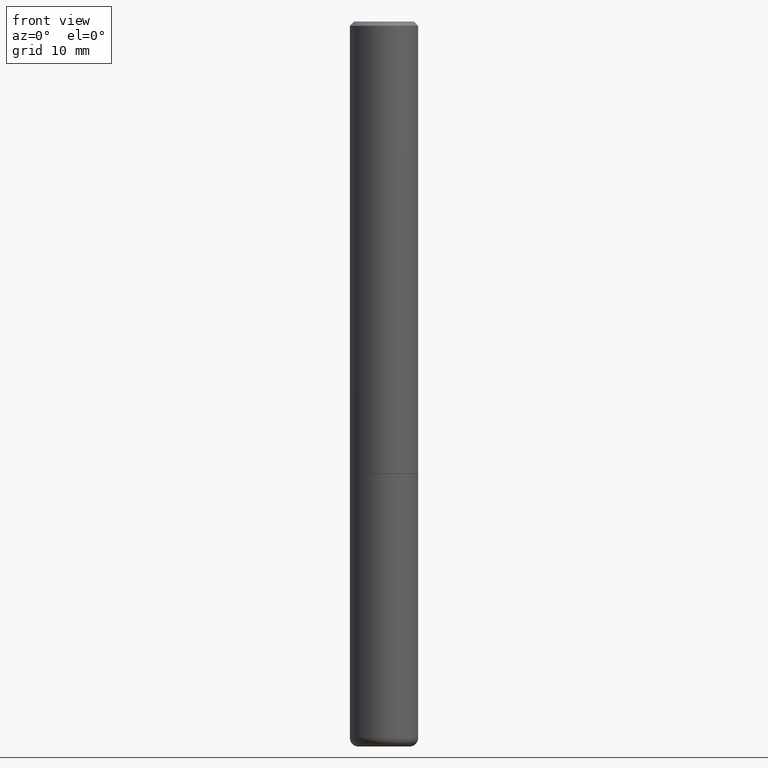
[diagram: clean part render]
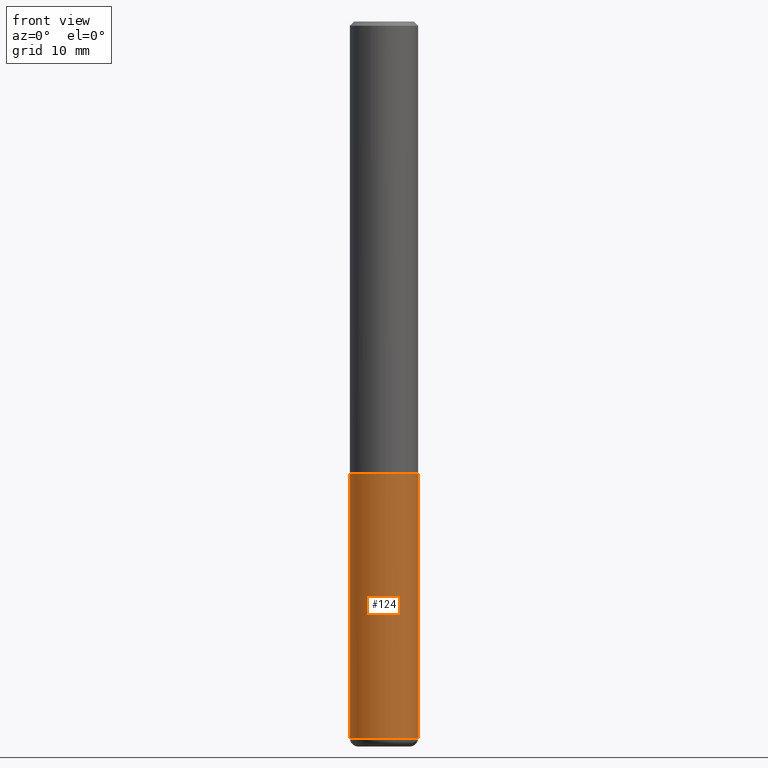
[diagram: same view with one face highlighted and labeled with its STEP entity id]
A machine part, front view. The second image highlights one B-rep face of the part: STEP entity #124.
In plain terms, the highlighted cylindrical surface (edge-blend (fillet) strip) has radius 4.0005 mm, axis along (-0, 0, 1).
Its self-contained STEP definition (entity closure, byte-faithful):
#27 = DIRECTION ( 'NONE',  ( -2.445468806185136597E-29, 3.491481338843145583E-15, 1.000000000000000000 ) ) ;
#32 = CARTESIAN_POINT ( 'NONE',  ( 0.000000000000000000, 0.000000000000000000, 0.000000000000000000 ) ) ;
#45 = LINE ( 'NONE', #270, #63 ) ;
#53 = VERTEX_POINT ( 'NONE', #337 ) ;
#62 = CIRCLE ( 'NONE', #158, 0.1575000000000000011 ) ;
#63 = VECTOR ( 'NONE', #329, 39.37007874015748143 ) ;
#79 = ORIENTED_EDGE ( 'NONE', *, *, #367, .T. ) ;
#81 = CIRCLE ( 'NONE', #316, 0.1575000000000000011 ) ;
#100 = DIRECTION ( 'NONE',  ( 1.000000000000000000, -6.982962677686268288E-15, 0.000000000000000000 ) ) ;
#110 = EDGE_CURVE ( 'NONE', #301, #366, #62, .T. ) ;
#112 = CARTESIAN_POINT ( 'NONE',  ( -0.1574999999999998901, -1.042757312686600805E-14, -3.307099999999999707 ) ) ;
#124 = ADVANCED_FACE ( 'NONE', ( #194 ), #252, .T. ) ;
#157 = DIRECTION ( 'NONE',  ( -2.445468806185136597E-29, 3.491481338843145583E-15, 1.000000000000000000 ) ) ;
#158 = AXIS2_PLACEMENT_3D ( 'NONE', #377, #157, #248 ) ;
#182 = VERTEX_POINT ( 'NONE', #215 ) ;
#185 = ORIENTED_EDGE ( 'NONE', *, *, #236, .F. ) ;
#194 = FACE_OUTER_BOUND ( 'NONE', #213, .T. ) ;
#213 = EDGE_LOOP ( 'NONE', ( #185, #310, #79, #277 ) ) ;
#215 = CARTESIAN_POINT ( 'NONE',  ( -0.1575000000000000011, -8.297071213903919899E-15, -2.086699999999999999 ) ) ;
#216 = CARTESIAN_POINT ( 'NONE',  ( -0.1575000000000000011, 1.119104808822157801E-15, -7.747322767151475583E-30 ) ) ;
#218 = DIRECTION ( 'NONE',  ( 1.000000000000000000, -6.982962677686265922E-15, 4.876176775795935232E-29 ) ) ;
#236 = EDGE_CURVE ( 'NONE', #301, #182, #382, .T. ) ;
#248 = DIRECTION ( 'NONE',  ( 1.000000000000000000, -6.982962677686261977E-15, 0.000000000000000000 ) ) ;
#252 = CYLINDRICAL_SURFACE ( 'NONE', #376, 0.1575000000000000011 ) ;
#264 = VECTOR ( 'NONE', #346, 39.37007874015748143 ) ;
#268 = CARTESIAN_POINT ( 'NONE',  ( 5.102959757866523939E-29, -7.285674109763990928E-15, -2.086699999999999999 ) ) ;
#270 = CARTESIAN_POINT ( 'NONE',  ( 0.1575000000000000011, -1.099816621735586889E-15, 7.679978421878598033E-30 ) ) ;
#277 = ORIENTED_EDGE ( 'NONE', *, *, #351, .F. ) ;
#301 = VERTEX_POINT ( 'NONE', #112 ) ;
#310 = ORIENTED_EDGE ( 'NONE', *, *, #110, .T. ) ;
#316 = AXIS2_PLACEMENT_3D ( 'NONE', #268, #396, #100 ) ;
#329 = DIRECTION ( 'NONE',  ( -2.445468806185136877E-29, 3.491481338843145188E-15, 1.000000000000000000 ) ) ;
#337 = CARTESIAN_POINT ( 'NONE',  ( 0.1575000000000000011, -8.385490731499577619E-15, -2.086699999999999999 ) ) ;
#346 = DIRECTION ( 'NONE',  ( -2.445468806185136877E-29, 3.491481338843145188E-15, 1.000000000000000000 ) ) ;
#351 = EDGE_CURVE ( 'NONE', #182, #53, #81, .T. ) ;
#366 = VERTEX_POINT ( 'NONE', #368 ) ;
#367 = EDGE_CURVE ( 'NONE', #366, #53, #45, .T. ) ;
#368 = CARTESIAN_POINT ( 'NONE',  ( 0.1574999999999998901, -1.264649455742375235E-14, -3.307099999999999707 ) ) ;
#376 = AXIS2_PLACEMENT_3D ( 'NONE', #32, #27, #218 ) ;
#377 = CARTESIAN_POINT ( 'NONE',  ( 8.087409888934865187E-29, -1.154667793568816566E-14, -3.307099999999999707 ) ) ;
#382 = LINE ( 'NONE', #216, #264 ) ;
#396 = DIRECTION ( 'NONE',  ( -2.445468806185136597E-29, 3.491481338843145583E-15, 1.000000000000000000 ) ) ;